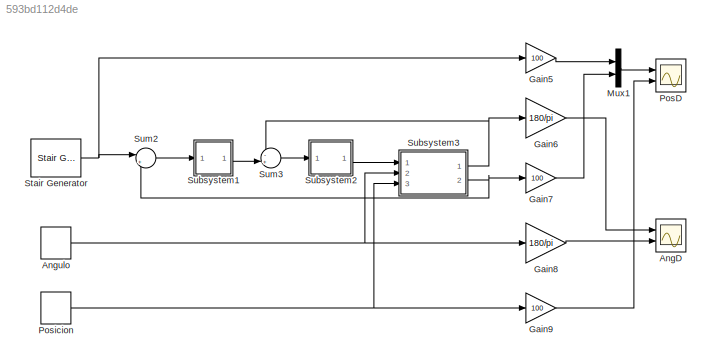
MODEL slx_593bd112d4de
KIND model
CONFIG AbsTol = auto
CONFIG EnableMultiTasking = off
CONFIG FixedStep = auto
CONFIG MaxStep = auto
CONFIG MinStep = auto
CONFIG RelTol = 1e-3
CONFIG SampleTimeConstraint = Unconstrained
CONFIG SolverName = VariableStepAuto
CONFIG StartTime = 0.0
CONFIG StopTime = 60
BLOCK [Scope] AngD
  Floating = off
  NumInputPorts = 2
  Ports = [2]
  ScopeSpecificationString = Simulink.scopes.TimeScopeBlockCfg('CurrentConfiguration', extmgr.ConfigurationSet(extmgr.Configuration('Core','General UI',true),extmgr.Configuration('Core','Source UI',true),extmgr.Configuration('Sources','WiredSimulink',true,'DataLoggingVariableName','ScopeData1'),extmgr.Configuration('Visuals','Time Domain',true,'SerializedDisplays',{struct('MinYLimReal','-37.76314','MaxYLimReal','31.59691','YL...<+2013ch>
BLOCK [DiscretePulseGenerator] Angulo
  Amplitude = 10*pi/180
  Period = 60
  PhaseDelay = 20
  Ports = [0, 1]
  PulseType = Time based
  PulseWidth = 0.1
BLOCK [Gain] Gain5
  Gain = 100
BLOCK [Gain] Gain6
  Gain = 180/pi
BLOCK [Gain] Gain7
  Gain = 100
BLOCK [Gain] Gain8
  Gain = 180/pi
BLOCK [Gain] Gain9
  Gain = 100
BLOCK [Mux] Mux1
  DisplayOption = bar
  Inputs = 2
  Ports = [2, 1]
BLOCK [Scope] PosD
  Floating = off
  NumInputPorts = 2
  Ports = [2]
  ScopeSpecificationString = Simulink.scopes.TimeScopeBlockCfg('CurrentConfiguration', extmgr.ConfigurationSet(extmgr.Configuration('Core','General UI',true),extmgr.Configuration('Core','Source UI',true),extmgr.Configuration('Sources','WiredSimulink',true,'DataLoggingVariableName','ScopeData2'),extmgr.Configuration('Visuals','Time Domain',true,'SerializedDisplays',{struct('MinYLimReal','-11.3143','MaxYLimReal','54.92234','YLa...<+1518ch>
BLOCK [DiscretePulseGenerator] Posicion
  Amplitude = 5/100
  Period = 60
  PhaseDelay = 40
  Ports = [0, 1]
  PulseType = Time based
BLOCK [Reference] Stair Generator  REF=spsStairGeneratorLib/Stair
Generator
  Ports = [0, 1]
  SourceBlock = spsStairGeneratorLib/Stair\nGenerator
  SourceProductBaseCode = PS
  SourceType = Stair Generator
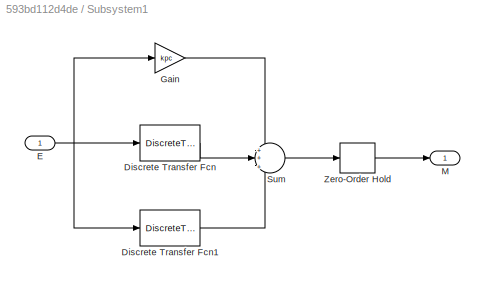
BLOCK [SubSystem] Subsystem1
  Ports = [1, 1]
  RequestExecContextInheritance = off
BLOCK [DiscreteTransferFcn] Subsystem1/Discrete Transfer Fcn
  Denominator = 2*[1 -1]
  InputPortMap = u0
  Numerator = kpc*kic*Ts*[1 1]
  Ports = [1, 1]
  SampleTime = Ts
BLOCK [DiscreteTransferFcn] Subsystem1/Discrete Transfer Fcn1
  Denominator = [(2+Nc*Ts) Nc*Ts-2]
  InputPortMap = u0
  Numerator = 2*Nc*kpc*kdc*[1 -1]
  Ports = [1, 1]
  SampleTime = Ts
BLOCK [Inport] Subsystem1/E
BLOCK [Gain] Subsystem1/Gain
  Gain = kpc
BLOCK [Outport] Subsystem1/M
BLOCK [Sum] Subsystem1/Sum
  Inputs = ++|+
  Ports = [3, 1]
BLOCK [ZeroOrderHold] Subsystem1/Zero-Order Hold
  SampleTime = Ts
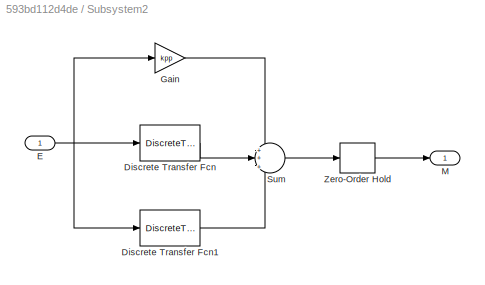
BLOCK [SubSystem] Subsystem2
  Ports = [1, 1]
  RequestExecContextInheritance = off
BLOCK [DiscreteTransferFcn] Subsystem2/Discrete Transfer Fcn
  Denominator = 2*[1 -1]
  InputPortMap = u0
  Numerator = kpp*kip*Ts*[1 1]
  Ports = [1, 1]
  SampleTime = Ts
BLOCK [DiscreteTransferFcn] Subsystem2/Discrete Transfer Fcn1
  Denominator = [(2+Np*Ts) Np*Ts-2]
  InputPortMap = u0
  Numerator = 2*Np*kpp*kdp*[1 -1]
  Ports = [1, 1]
  SampleTime = Ts
BLOCK [Inport] Subsystem2/E
BLOCK [Gain] Subsystem2/Gain
  Gain = kpp
BLOCK [Outport] Subsystem2/M
BLOCK [Sum] Subsystem2/Sum
  Inputs = ++|+
  Ports = [3, 1]
BLOCK [ZeroOrderHold] Subsystem2/Zero-Order Hold
  SampleTime = Ts
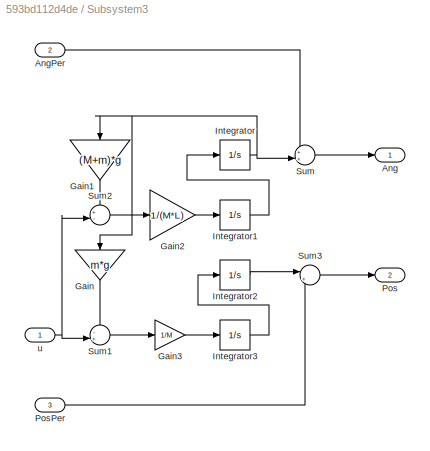
BLOCK [SubSystem] Subsystem3
  Ports = [3, 2]
  RequestExecContextInheritance = off
BLOCK [Outport] Subsystem3/Ang
BLOCK [Inport] Subsystem3/AngPer
  Port = 2
BLOCK [Gain] Subsystem3/Gain
  Gain = m*g
  NameLocation = left
BLOCK [Gain] Subsystem3/Gain1
  Gain = (M+m)*g
  NameLocation = left
BLOCK [Gain] Subsystem3/Gain2
  Gain = 1/(M*L)
BLOCK [Gain] Subsystem3/Gain3
  Gain = 1/M
BLOCK [Integrator] Subsystem3/Integrator
  InitialCondition = 10*pi/180
  Ports = [1, 1]
BLOCK [Integrator] Subsystem3/Integrator1
  Ports = [1, 1]
BLOCK [Integrator] Subsystem3/Integrator2
  Ports = [1, 1]
BLOCK [Integrator] Subsystem3/Integrator3
  Ports = [1, 1]
BLOCK [Outport] Subsystem3/Pos
  Port = 2
BLOCK [Inport] Subsystem3/PosPer
  Port = 3
BLOCK [Sum] Subsystem3/Sum
  Inputs = ++|
  Ports = [2, 1]
BLOCK [Sum] Subsystem3/Sum1
  Inputs = -+|
  Ports = [2, 1]
BLOCK [Sum] Subsystem3/Sum2
  Inputs = +-|
  Ports = [2, 1]
BLOCK [Sum] Subsystem3/Sum3
  Inputs = |++
  Ports = [2, 1]
BLOCK [Inport] Subsystem3/u
BLOCK [Sum] Sum2
  Inputs = |+-
  Ports = [2, 1]
BLOCK [Sum] Sum3
  Inputs = -+|
  Ports = [2, 1]
NET Angulo:1 -> Gain8:1, Subsystem3:2
LINE Gain5:1 -> Mux1:1
LINE Gain6:1 -> AngD:1
LINE Gain7:1 -> Mux1:2
LINE Gain8:1 -> AngD:2
LINE Gain9:1 -> PosD:2
LINE Mux1:1 -> PosD:1
NET Posicion:1 -> Gain9:1, Subsystem3:3
NET Stair Generator:1 -> Gain5:1, Sum2:1
LINE Subsystem1/Discrete Transfer Fcn1:1 -> Subsystem1/Sum:3
LINE Subsystem1/Discrete Transfer Fcn:1 -> Subsystem1/Sum:2
NET Subsystem1/E:1 -> Subsystem1/Discrete Transfer Fcn1:1, Subsystem1/Discrete Transfer Fcn:1, Subsystem1/Gain:1
LINE Subsystem1/Gain:1 -> Subsystem1/Sum:1
LINE Subsystem1/Sum:1 -> Subsystem1/Zero-Order Hold:1
LINE Subsystem1/Zero-Order Hold:1 -> Subsystem1/M:1
LINE Subsystem1:1 -> Sum3:2
LINE Subsystem2/Discrete Transfer Fcn1:1 -> Subsystem2/Sum:3
LINE Subsystem2/Discrete Transfer Fcn:1 -> Subsystem2/Sum:2
NET Subsystem2/E:1 -> Subsystem2/Discrete Transfer Fcn1:1, Subsystem2/Discrete Transfer Fcn:1, Subsystem2/Gain:1
LINE Subsystem2/Gain:1 -> Subsystem2/Sum:1
LINE Subsystem2/Sum:1 -> Subsystem2/Zero-Order Hold:1
LINE Subsystem2/Zero-Order Hold:1 -> Subsystem2/M:1
LINE Subsystem2:1 -> Subsystem3:1
LINE Subsystem3/AngPer:1 -> Subsystem3/Sum:1
LINE Subsystem3/Gain1:1 -> Subsystem3/Sum2:1
LINE Subsystem3/Gain2:1 -> Subsystem3/Integrator1:1
LINE Subsystem3/Gain3:1 -> Subsystem3/Integrator3:1
LINE Subsystem3/Gain:1 -> Subsystem3/Sum1:1
LINE Subsystem3/Integrator1:1 -> Subsystem3/Integrator:1
LINE Subsystem3/Integrator2:1 -> Subsystem3/Sum3:1
LINE Subsystem3/Integrator3:1 -> Subsystem3/Integrator2:1
NET Subsystem3/Integrator:1 -> Subsystem3/Gain1:1, Subsystem3/Gain:1, Subsystem3/Sum:2
LINE Subsystem3/PosPer:1 -> Subsystem3/Sum3:2
LINE Subsystem3/Sum1:1 -> Subsystem3/Gain3:1
LINE Subsystem3/Sum2:1 -> Subsystem3/Gain2:1
LINE Subsystem3/Sum3:1 -> Subsystem3/Pos:1
LINE Subsystem3/Sum:1 -> Subsystem3/Ang:1
NET Subsystem3/u:1 -> Subsystem3/Sum1:2, Subsystem3/Sum2:2
NET Subsystem3:1 -> Gain6:1, Sum3:1
NET Subsystem3:2 -> Gain7:1, Sum2:2
LINE Sum2:1 -> Subsystem1:1
LINE Sum3:1 -> Subsystem2:1
note: NET lines group one-source signal fan-out (src -> all destinations, sorted); 1:1 wires keep LINE
